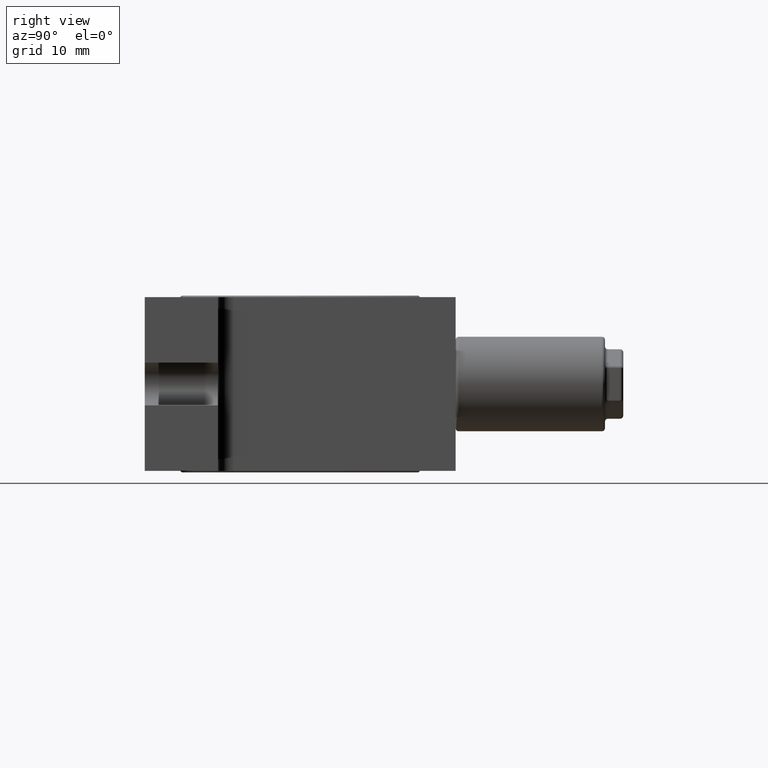
[diagram: clean part render]
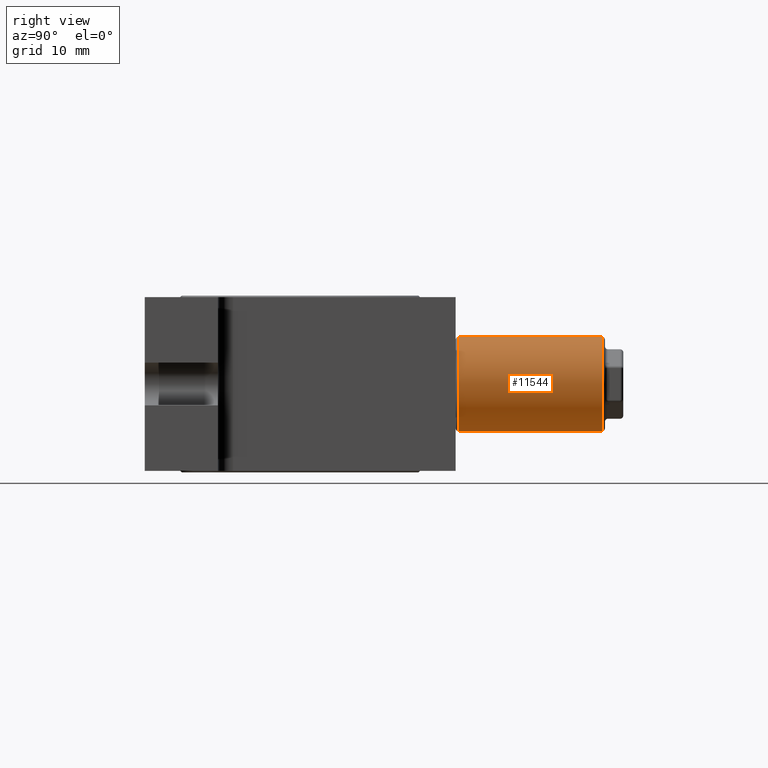
[diagram: same view with one face highlighted and labeled with its STEP entity id]
A machine part, right view. The second image highlights one B-rep face of the part: STEP entity #11544.
In plain terms, the highlighted cylindrical surface (partial cylindrical patch) has radius 7.75 mm, axis along (0, -1, 0).
Its self-contained STEP definition (entity closure, byte-faithful):
#4 = EDGE_CURVE ( 'NONE', #18623, #6901, #21425, .T. ) ;
#93 = DIRECTION ( 'NONE',  ( 2.465190328815660100E-031, -1.000000000000000000, 1.281898970984143800E-030 ) ) ;
#578 = EDGE_CURVE ( 'NONE', #9083, #23277, #1448, .T. ) ;
#623 = LINE ( 'NONE', #19742, #21398 ) ;
#766 = VECTOR ( 'NONE', #24158, 1000.000000000000000 ) ;
#980 = CARTESIAN_POINT ( 'NONE',  ( 17.50000000000000000, 50.00000000000000000, -7.750000000000000000 ) ) ;
#1347 = EDGE_CURVE ( 'NONE', #12092, #9972, #28489, .T. ) ;
#1448 = CIRCLE ( 'NONE', #31121, 7.750000000000000000 ) ;
#1680 = VERTEX_POINT ( 'NONE', #27327 ) ;
#1692 = CARTESIAN_POINT ( 'NONE',  ( 17.50000000000000000, 50.00000000000000000, 7.750000000000000000 ) ) ;
#2152 = CARTESIAN_POINT ( 'NONE',  ( 17.50000000000000000, 50.00000000000000000, -7.750000000000000000 ) ) ;
#2353 = DIRECTION ( 'NONE',  ( -2.465190328815660100E-031, 1.000000000000000000, -1.281898970984143800E-030 ) ) ;
#2880 = DIRECTION ( 'NONE',  ( 2.465190328815660100E-031, -1.000000000000000000, 1.281898970984143800E-030 ) ) ;
#3375 = DIRECTION ( 'NONE',  ( 2.465190328815660100E-031, -1.000000000000000000, 1.281898970984143800E-030 ) ) ;
#3381 = ORIENTED_EDGE ( 'NONE', *, *, #24806, .T. ) ;
#3491 = ORIENTED_EDGE ( 'NONE', *, *, #19781, .T. ) ;
#4306 = VECTOR ( 'NONE', #2353, 1000.000000000000000 ) ;
#4578 = VECTOR ( 'NONE', #93, 1000.000000000000000 ) ;
#4626 = DIRECTION ( 'NONE',  ( -2.465190328815660100E-031, 1.000000000000000000, -1.281898970984143800E-030 ) ) ;
#4693 = LINE ( 'NONE', #18163, #9773 ) ;
#5169 = ORIENTED_EDGE ( 'NONE', *, *, #26146, .F. ) ;
#6682 = LINE ( 'NONE', #980, #10048 ) ;
#6829 = ORIENTED_EDGE ( 'NONE', *, *, #578, .T. ) ;
#6860 = VECTOR ( 'NONE', #4626, 1000.000000000000000 ) ;
#6901 = VERTEX_POINT ( 'NONE', #26925 ) ;
#7616 = CARTESIAN_POINT ( 'NONE',  ( 17.50000000000000000, 50.00000000000000000, -7.750000000000000000 ) ) ;
#7625 = CARTESIAN_POINT ( 'NONE',  ( 17.50000000000000000, 31.50000000000000000, -7.750000000000000000 ) ) ;
#8110 = CARTESIAN_POINT ( 'NONE',  ( 17.50000000000000000, 50.00000000000000000, 7.750000000000000000 ) ) ;
#8419 = LINE ( 'NONE', #7616, #10951 ) ;
#8518 = LINE ( 'NONE', #12072, #6860 ) ;
#9083 = VERTEX_POINT ( 'NONE', #33821 ) ;
#9182 = DIRECTION ( 'NONE',  ( 2.465190328815660100E-031, -1.000000000000000000, 1.281898970984143800E-030 ) ) ;
#9244 = VERTEX_POINT ( 'NONE', #9946 ) ;
#9667 = VERTEX_POINT ( 'NONE', #15324 ) ;
#9748 = CARTESIAN_POINT ( 'NONE',  ( 17.50000000000000000, 33.50000000000000000, 7.750000000000000000 ) ) ;
#9773 = VECTOR ( 'NONE', #10086, 1000.000000000000000 ) ;
#9894 = CARTESIAN_POINT ( 'NONE',  ( 17.50000000000000000, 26.00000000000000000, 3.469446951953619700E-015 ) ) ;
#9946 = CARTESIAN_POINT ( 'NONE',  ( 17.50000000000000000, 45.50000000000000000, 7.750000000000000000 ) ) ;
#9972 = VERTEX_POINT ( 'NONE', #9748 ) ;
#10048 = VECTOR ( 'NONE', #3375, 1000.000000000000000 ) ;
#10086 = DIRECTION ( 'NONE',  ( 2.465190328815660100E-031, -1.000000000000000000, 1.281898970984143800E-030 ) ) ;
#10130 = CARTESIAN_POINT ( 'NONE',  ( 17.50000000000000000, 26.00000000000000000, 7.750000000000003600 ) ) ;
#10829 = VERTEX_POINT ( 'NONE', #13450 ) ;
#10951 = VECTOR ( 'NONE', #26493, 1000.000000000000000 ) ;
#11186 = ORIENTED_EDGE ( 'NONE', *, *, #27221, .F. ) ;
#11324 = CARTESIAN_POINT ( 'NONE',  ( 17.50000000000000000, 31.50000000000000000, 7.750000000000000000 ) ) ;
#11544 = ADVANCED_FACE ( 'NONE', ( #17015 ), #25023, .T. ) ;
#11672 = EDGE_CURVE ( 'NONE', #23382, #6901, #18706, .T. ) ;
#12072 = CARTESIAN_POINT ( 'NONE',  ( 17.50000000000000000, 50.00000000000000000, 7.750000000000000000 ) ) ;
#12092 = VERTEX_POINT ( 'NONE', #29053 ) ;
#12722 = DIRECTION ( 'NONE',  ( -2.465190328815660100E-031, 1.000000000000000000, -1.281898970984143800E-030 ) ) ;
#13252 = EDGE_CURVE ( 'NONE', #23277, #9244, #21763, .T. ) ;
#13450 = CARTESIAN_POINT ( 'NONE',  ( 17.50000000000000000, 45.50000000000000000, -7.750000000000000000 ) ) ;
#14069 = ORIENTED_EDGE ( 'NONE', *, *, #18226, .F. ) ;
#14341 = LINE ( 'NONE', #2152, #766 ) ;
#14844 = VECTOR ( 'NONE', #26252, 1000.000000000000000 ) ;
#15220 = EDGE_CURVE ( 'NONE', #28742, #9244, #8518, .T. ) ;
#15271 = DIRECTION ( 'NONE',  ( 0.0000000000000000000, 0.0000000000000000000, 1.000000000000000000 ) ) ;
#15324 = CARTESIAN_POINT ( 'NONE',  ( 17.50000000000000000, 26.00000000000000000, -7.749999999999996400 ) ) ;
#15555 = LINE ( 'NONE', #24124, #4578 ) ;
#15741 = VERTEX_POINT ( 'NONE', #30832 ) ;
#15961 = CARTESIAN_POINT ( 'NONE',  ( 17.50000000000000000, 50.00000000000000000, -7.750000000000000000 ) ) ;
#16222 = CARTESIAN_POINT ( 'NONE',  ( 17.50000000000000000, 49.50000000000000000, 7.703719777548939200E-030 ) ) ;
#16344 = DIRECTION ( 'NONE',  ( 2.465190328815660100E-031, -1.000000000000000000, 1.281898970984143800E-030 ) ) ;
#16939 = EDGE_LOOP ( 'NONE', ( #14069, #6829, #28886, #21919, #33339, #19389, #29418, #3491, #3381, #34747, #11186, #17969, #21186, #5169, #30994, #20795 ) ) ;
#17015 = FACE_OUTER_BOUND ( 'NONE', #16939, .T. ) ;
#17449 = CARTESIAN_POINT ( 'NONE',  ( 17.50000000000000000, 49.50000000000000000, 7.750000000000000000 ) ) ;
#17682 = CARTESIAN_POINT ( 'NONE',  ( 17.50000000000000000, 50.00000000000000000, -7.750000000000000000 ) ) ;
#17969 = ORIENTED_EDGE ( 'NONE', *, *, #11672, .T. ) ;
#18163 = CARTESIAN_POINT ( 'NONE',  ( 17.50000000000000000, 50.00000000000000000, 7.750000000000000000 ) ) ;
#18226 = EDGE_CURVE ( 'NONE', #9083, #10829, #6682, .T. ) ;
#18394 = DIRECTION ( 'NONE',  ( 2.465190328815660100E-031, -1.000000000000000000, 1.281898970984143800E-030 ) ) ;
#18463 = AXIS2_PLACEMENT_3D ( 'NONE', #20748, #18394, #15271 ) ;
#18623 = VERTEX_POINT ( 'NONE', #29578 ) ;
#18706 = LINE ( 'NONE', #15961, #4306 ) ;
#19216 = DIRECTION ( 'NONE',  ( 0.0000000000000000000, 0.0000000000000000000, -1.000000000000000000 ) ) ;
#19389 = ORIENTED_EDGE ( 'NONE', *, *, #35034, .F. ) ;
#19651 = DIRECTION ( 'NONE',  ( -2.465190328815660100E-031, 1.000000000000000000, -1.281898970984143800E-030 ) ) ;
#19742 = CARTESIAN_POINT ( 'NONE',  ( 17.50000000000000000, 50.00000000000000000, 7.750000000000000000 ) ) ;
#19781 = EDGE_CURVE ( 'NONE', #9972, #28425, #623, .T. ) ;
#20390 = CIRCLE ( 'NONE', #31980, 7.750000000000000000 ) ;
#20424 = DIRECTION ( 'NONE',  ( 2.465190328815660100E-031, -1.000000000000000000, 1.281898970984143800E-030 ) ) ;
#20577 = CARTESIAN_POINT ( 'NONE',  ( 17.50000000000000000, 50.00000000000000000, 7.750000000000000000 ) ) ;
#20617 = LINE ( 'NONE', #27878, #21465 ) ;
#20631 = CARTESIAN_POINT ( 'NONE',  ( 17.50000000000000000, 50.00000000000000000, -7.750000000000000000 ) ) ;
#20748 = CARTESIAN_POINT ( 'NONE',  ( 17.50000000000000000, 50.00000000000000000, 7.703719777548939200E-030 ) ) ;
#20795 = ORIENTED_EDGE ( 'NONE', *, *, #26383, .F. ) ;
#21186 = ORIENTED_EDGE ( 'NONE', *, *, #4, .F. ) ;
#21398 = VECTOR ( 'NONE', #9182, 1000.000000000000000 ) ;
#21425 = LINE ( 'NONE', #17682, #24774 ) ;
#21465 = VECTOR ( 'NONE', #19651, 1000.000000000000000 ) ;
#21763 = LINE ( 'NONE', #20577, #23850 ) ;
#21919 = ORIENTED_EDGE ( 'NONE', *, *, #15220, .F. ) ;
#23277 = VERTEX_POINT ( 'NONE', #17449 ) ;
#23382 = VERTEX_POINT ( 'NONE', #7625 ) ;
#23850 = VECTOR ( 'NONE', #34467, 1000.000000000000000 ) ;
#24124 = CARTESIAN_POINT ( 'NONE',  ( 17.50000000000000000, 50.00000000000000000, -7.750000000000000000 ) ) ;
#24158 = DIRECTION ( 'NONE',  ( 2.465190328815660100E-031, -1.000000000000000000, 1.281898970984143800E-030 ) ) ;
#24236 = EDGE_CURVE ( 'NONE', #24441, #9667, #20390, .T. ) ;
#24441 = VERTEX_POINT ( 'NONE', #10130 ) ;
#24509 = CARTESIAN_POINT ( 'NONE',  ( 17.50000000000000000, 43.50000000000000000, 7.750000000000000000 ) ) ;
#24589 = EDGE_CURVE ( 'NONE', #28742, #1680, #30942, .T. ) ;
#24774 = VECTOR ( 'NONE', #20424, 1000.000000000000000 ) ;
#24806 = EDGE_CURVE ( 'NONE', #28425, #24441, #4693, .T. ) ;
#24824 = EDGE_CURVE ( 'NONE', #29734, #15741, #31332, .T. ) ;
#25004 = VECTOR ( 'NONE', #2880, 1000.000000000000000 ) ;
#25023 = CYLINDRICAL_SURFACE ( 'NONE', #18463, 7.750000000000000000 ) ;
#25941 = DIRECTION ( 'NONE',  ( 2.465190328815660100E-031, -1.000000000000000000, 1.281898970984143800E-030 ) ) ;
#26146 = EDGE_CURVE ( 'NONE', #15741, #18623, #8419, .T. ) ;
#26252 = DIRECTION ( 'NONE',  ( 2.465190328815660100E-031, -1.000000000000000000, 1.281898970984143800E-030 ) ) ;
#26383 = EDGE_CURVE ( 'NONE', #10829, #29734, #15555, .T. ) ;
#26493 = DIRECTION ( 'NONE',  ( 2.465190328815660100E-031, -1.000000000000000000, 1.281898970984143800E-030 ) ) ;
#26925 = CARTESIAN_POINT ( 'NONE',  ( 17.50000000000000000, 33.50000000000000000, -7.750000000000000000 ) ) ;
#27221 = EDGE_CURVE ( 'NONE', #23382, #9667, #14341, .T. ) ;
#27327 = CARTESIAN_POINT ( 'NONE',  ( 17.50000000000000000, 39.50000000000000000, 7.750000000000000000 ) ) ;
#27641 = VECTOR ( 'NONE', #25941, 1000.000000000000000 ) ;
#27878 = CARTESIAN_POINT ( 'NONE',  ( 17.50000000000000000, 50.00000000000000000, 7.750000000000000000 ) ) ;
#28425 = VERTEX_POINT ( 'NONE', #11324 ) ;
#28489 = LINE ( 'NONE', #1692, #27641 ) ;
#28678 = CARTESIAN_POINT ( 'NONE',  ( 17.50000000000000000, 43.50000000000000000, -7.750000000000000000 ) ) ;
#28742 = VERTEX_POINT ( 'NONE', #24509 ) ;
#28886 = ORIENTED_EDGE ( 'NONE', *, *, #13252, .T. ) ;
#29053 = CARTESIAN_POINT ( 'NONE',  ( 17.50000000000000000, 37.50000000000000000, 7.750000000000000000 ) ) ;
#29418 = ORIENTED_EDGE ( 'NONE', *, *, #1347, .T. ) ;
#29578 = CARTESIAN_POINT ( 'NONE',  ( 17.50000000000000000, 37.50000000000000000, -7.750000000000000000 ) ) ;
#29734 = VERTEX_POINT ( 'NONE', #28678 ) ;
#30832 = CARTESIAN_POINT ( 'NONE',  ( 17.50000000000000000, 39.50000000000000000, -7.750000000000000000 ) ) ;
#30942 = LINE ( 'NONE', #8110, #25004 ) ;
#30994 = ORIENTED_EDGE ( 'NONE', *, *, #24824, .F. ) ;
#31121 = AXIS2_PLACEMENT_3D ( 'NONE', #16222, #16344, #19216 ) ;
#31164 = DIRECTION ( 'NONE',  ( 0.0000000000000000000, 0.0000000000000000000, -1.000000000000000000 ) ) ;
#31332 = LINE ( 'NONE', #20631, #14844 ) ;
#31980 = AXIS2_PLACEMENT_3D ( 'NONE', #9894, #12722, #31164 ) ;
#33339 = ORIENTED_EDGE ( 'NONE', *, *, #24589, .T. ) ;
#33821 = CARTESIAN_POINT ( 'NONE',  ( 17.50000000000000000, 49.50000000000000000, -7.750000000000000000 ) ) ;
#34467 = DIRECTION ( 'NONE',  ( 2.465190328815660100E-031, -1.000000000000000000, 1.281898970984143800E-030 ) ) ;
#34747 = ORIENTED_EDGE ( 'NONE', *, *, #24236, .T. ) ;
#35034 = EDGE_CURVE ( 'NONE', #12092, #1680, #20617, .T. ) ;